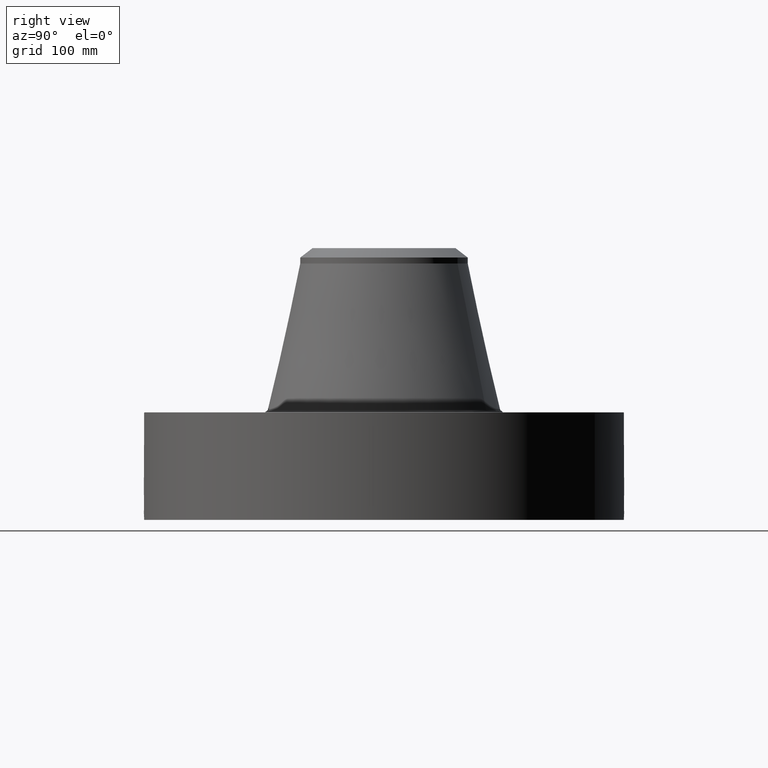
[diagram: clean part render]
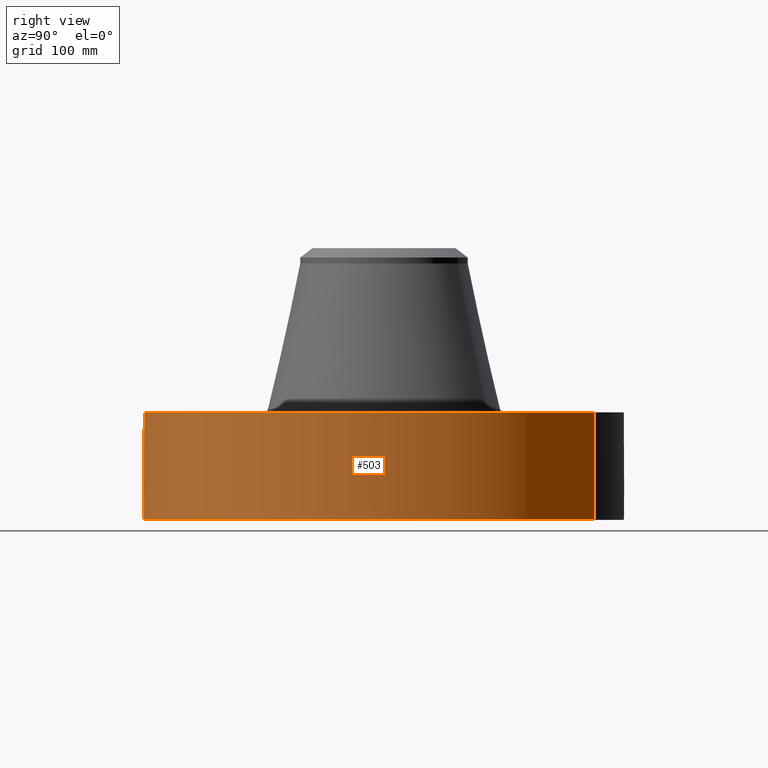
[diagram: same view with one face highlighted and labeled with its STEP entity id]
A machine part, right view. The second image highlights one B-rep face of the part: STEP entity #503.
In plain terms, the highlighted cylindrical surface (partial cylindrical patch) has radius 241.3 mm, axis along (0, 0, -1).
Its self-contained STEP definition (entity closure, byte-faithful):
#38=AXIS2_PLACEMENT_3D('Cylinder Axis2P3D',#35,#36,#37) ;
#169=AXIS2_PLACEMENT_3D('Circle Axis2P3D',#167,#168,$) ;
#407=AXIS2_PLACEMENT_3D('Circle Axis2P3D',#405,#406,$) ;
#35=CARTESIAN_POINT('Axis2P3D Location',(0.,0.,5.62500000002)) ;
#44=CARTESIAN_POINT('Vertex',(-4.55454261676,-8.33703433799,0.250000000001)) ;
#46=CARTESIAN_POINT('Vertex',(4.55454261676,8.33703433799,0.250000000001)) ;
#49=CARTESIAN_POINT('Line Origine',(-4.55454261676,-8.33703433799,2.37500000001)) ;
#53=CARTESIAN_POINT('Vertex',(-4.55454261676,-8.33703433799,4.50000000002)) ;
#60=CARTESIAN_POINT('Vertex',(4.55454261676,8.33703433799,4.50000000002)) ;
#63=CARTESIAN_POINT('Line Origine',(4.55454261676,8.33703433799,2.37500000001)) ;
#167=CARTESIAN_POINT('Axis2P3D Location',(0.,0.,0.250000000001)) ;
#405=CARTESIAN_POINT('Axis2P3D Location',(0.,0.,4.50000000002)) ;
#417=CARTESIAN_POINT('Control Point',(0.0575325675486,-9.49982578811,1.2894086259)) ;
#418=CARTESIAN_POINT('Control Point',(0.0387617029177,-9.49993946767,1.2925030616)) ;
#419=CARTESIAN_POINT('Control Point',(0.0197405343339,-9.49999853895,1.2940799501)) ;
#420=CARTESIAN_POINT('Control Point',(0.000716129650442,-9.49999997305,1.29411849914)) ;
#421=CARTESIAN_POINT('Vertex',(0.0575195611824,-9.49982611812,1.28941105279)) ;
#423=CARTESIAN_POINT('Vertex',(0.000716015010135,-9.49999997305,1.29411850959)) ;
#427=CARTESIAN_POINT('Control Point',(0.0575194650207,-9.49982586745,1.28941049641)) ;
#428=CARTESIAN_POINT('Control Point',(0.0971263632596,-9.49958605594,1.28465850568)) ;
#429=CARTESIAN_POINT('Control Point',(0.136002646622,-9.49909360353,1.27268550158)) ;
#430=CARTESIAN_POINT('Control Point',(0.171718061243,-9.49844792101,1.25435913128)) ;
#431=CARTESIAN_POINT('Vertex',(0.171718061243,-9.49844792101,1.25435913128)) ;
#435=CARTESIAN_POINT('Control Point',(0.0304002735868,-9.49995135904,0.531143633136)) ;
#436=CARTESIAN_POINT('Control Point',(0.086771623684,-9.49977096817,0.538305394629)) ;
#437=CARTESIAN_POINT('Control Point',(0.141553163732,-9.49917753609,0.555914995276)) ;
#438=CARTESIAN_POINT('Control Point',(0.192025537167,-9.49822518869,0.58347830249)) ;
#439=CARTESIAN_POINT('Control Point',(0.265325114584,-9.49641279305,0.642895462642)) ;
#440=CARTESIAN_POINT('Control Point',(0.317440529095,-9.49472459473,0.719316163414)) ;
#441=CARTESIAN_POINT('Control Point',(0.334530416928,-9.49412332696,0.751986426134)) ;
#442=CARTESIAN_POINT('Control Point',(0.36847674944,-9.4928757749,0.840222821261)) ;
#443=CARTESIAN_POINT('Control Point',(0.375526403581,-9.49256610225,0.934455389906)) ;
#444=CARTESIAN_POINT('Control Point',(0.36938599237,-9.49282227648,0.991999991558)) ;
#445=CARTESIAN_POINT('Control Point',(0.339906533012,-9.49399493767,1.09112721564)) ;
#446=CARTESIAN_POINT('Control Point',(0.2802853053,-9.49592560805,1.17427142741)) ;
#447=CARTESIAN_POINT('Control Point',(0.248256653886,-9.496854785,1.206906435)) ;
#448=CARTESIAN_POINT('Control Point',(0.211604005712,-9.49772684141,1.23389277069)) ;
#449=CARTESIAN_POINT('Control Point',(0.171718061243,-9.49844792101,1.25435913128)) ;
#450=CARTESIAN_POINT('Vertex',(0.0304002735868,-9.49995135904,0.531143633136)) ;
#454=CARTESIAN_POINT('Control Point',(0.0304002735868,-9.49995135904,0.531143633136)) ;
#455=CARTESIAN_POINT('Control Point',(0.0202611729211,-9.49998380462,0.53086805011)) ;
#456=CARTESIAN_POINT('Control Point',(0.0101166074945,-9.50000000294,0.530945220321)) ;
#457=CARTESIAN_POINT('Control Point',(-2.72878353046E-006,-9.50000000004,0.531374667805)) ;
#458=CARTESIAN_POINT('Vertex',(-2.7287835396E-006,-9.50000000004,0.531374667805)) ;
#462=CARTESIAN_POINT('Control Point',(-0.193159967405,-9.49803607214,0.586433233683)) ;
#463=CARTESIAN_POINT('Control Point',(-0.149212423465,-9.49892982598,0.561467059981)) ;
#464=CARTESIAN_POINT('Control Point',(-0.10115845212,-9.49963677984,0.543581165944)) ;
#465=CARTESIAN_POINT('Control Point',(-0.0508206519909,-9.49999998544,0.533531295689)) ;
#466=CARTESIAN_POINT('Control Point',(-2.7287835389E-006,-9.50000000004,0.531374667805)) ;
#467=CARTESIAN_POINT('Vertex',(-0.193159967405,-9.49803607214,0.586433233683)) ;
#471=CARTESIAN_POINT('Control Point',(-0.193159967405,-9.49803607214,0.586433233683)) ;
#472=CARTESIAN_POINT('Control Point',(-0.222119006546,-9.49744713702,0.602884582388)) ;
#473=CARTESIAN_POINT('Control Point',(-0.249411383296,-9.49678168254,0.622217405788)) ;
#474=CARTESIAN_POINT('Control Point',(-0.27463229271,-9.49607319595,0.644255702063)) ;
#475=CARTESIAN_POINT('Control Point',(-0.341385873217,-9.49399594884,0.716105581242)) ;
#476=CARTESIAN_POINT('Control Point',(-0.383874883489,-9.49227878282,0.80590194249)) ;
#477=CARTESIAN_POINT('Control Point',(-0.398800769094,-9.49161188678,0.870351359594)) ;
#478=CARTESIAN_POINT('Control Point',(-0.399486240267,-9.49162271031,0.984725351354)) ;
#479=CARTESIAN_POINT('Control Point',(-0.359254072444,-9.49323070792,1.08947767761)) ;
#480=CARTESIAN_POINT('Control Point',(-0.334931992898,-9.49415713767,1.13095983018)) ;
#481=CARTESIAN_POINT('Control Point',(-0.266159836537,-9.49647544685,1.21445681121)) ;
#482=CARTESIAN_POINT('Control Point',(-0.173480293447,-9.49864536547,1.26890997348)) ;
#483=CARTESIAN_POINT('Control Point',(-0.116677432548,-9.49955881178,1.28863410109)) ;
#484=CARTESIAN_POINT('Control Point',(-0.0579003419898,-9.50000015767,1.29699293844)) ;
#485=CARTESIAN_POINT('Control Point',(2.5857935542E-005,-9.5,1.29415298432)) ;
#486=CARTESIAN_POINT('Vertex',(2.5857935536E-005,-9.5,1.29415298432)) ;
#490=CARTESIAN_POINT('Control Point',(0.000716015000062,-9.49999997305,1.29411850958)) ;
#491=CARTESIAN_POINT('Control Point',(0.00037096058774,-9.49999999906,1.29413606495)) ;
#492=CARTESIAN_POINT('Control Point',(2.58579411811E-005,-9.5,1.29415298432)) ;
#36=DIRECTION('Axis2P3D Direction',(0.,0.,-0.0393700787402)) ;
#37=DIRECTION('Axis2P3D XDirection',(0.0188750212049,0.0345504945626,0.)) ;
#50=DIRECTION('Vector Direction',(0.,0.,-0.0393700787402)) ;
#64=DIRECTION('Vector Direction',(0.,0.,-0.0393700787402)) ;
#168=DIRECTION('Axis2P3D Direction',(0.,0.,-0.0393700787402)) ;
#406=DIRECTION('Axis2P3D Direction',(0.,0.,-0.0393700787402)) ;
#51=VECTOR('Line Direction',#50,0.0393700787402) ;
#65=VECTOR('Line Direction',#64,0.0393700787402) ;
#411=ORIENTED_EDGE('',*,*,#171,.F.) ;
#412=ORIENTED_EDGE('',*,*,#67,.T.) ;
#413=ORIENTED_EDGE('',*,*,#409,.T.) ;
#414=ORIENTED_EDGE('',*,*,#55,.F.) ;
#495=ORIENTED_EDGE('',*,*,#425,.F.) ;
#496=ORIENTED_EDGE('',*,*,#433,.T.) ;
#497=ORIENTED_EDGE('',*,*,#452,.F.) ;
#498=ORIENTED_EDGE('',*,*,#460,.T.) ;
#499=ORIENTED_EDGE('',*,*,#469,.F.) ;
#500=ORIENTED_EDGE('',*,*,#488,.T.) ;
#501=ORIENTED_EDGE('',*,*,#493,.F.) ;
#502=FACE_BOUND('',#494,.T.) ;
#503=ADVANCED_FACE('PartBody',(#415,#502),#39,.T.) ;
#416=B_SPLINE_CURVE_WITH_KNOTS('',3,(#417,#418,#419,#420),.UNSPECIFIED.,.F.,.U.,(4,4),(4.41073259354,6.52131742244),.UNSPECIFIED.) ;
#426=B_SPLINE_CURVE_WITH_KNOTS('',3,(#427,#428,#429,#430),.UNSPECIFIED.,.F.,.U.,(4,4),(0.,4.48220722212),.UNSPECIFIED.) ;
#434=B_SPLINE_CURVE_WITH_KNOTS('',5,(#435,#436,#437,#438,#439,#440,#441,#442,#443,#444,#445,#446,#447,#448,#449),.UNSPECIFIED.,.F.,.U.,(6,3,3,3,6),(0.,9.87570584292,16.4487421136,26.8457131585,35.1883792292),.UNSPECIFIED.) ;
#453=B_SPLINE_CURVE_WITH_KNOTS('',3,(#454,#455,#456,#457),.UNSPECIFIED.,.F.,.U.,(4,4),(0.,1.05758898706),.UNSPECIFIED.) ;
#461=B_SPLINE_CURVE_WITH_KNOTS('',4,(#462,#463,#464,#465,#466),.UNSPECIFIED.,.F.,.U.,(5,5),(0.,7.08142306885),.UNSPECIFIED.) ;
#470=B_SPLINE_CURVE_WITH_KNOTS('',5,(#471,#472,#473,#474,#475,#476,#477,#478,#479,#480,#481,#482,#483,#484,#485),.UNSPECIFIED.,.F.,.U.,(6,3,3,3,6),(0.,5.83284033728,17.1177406203,25.5997495881,36.4273577477),.UNSPECIFIED.) ;
#489=B_SPLINE_CURVE_WITH_KNOTS('',2,(#490,#491,#492),.UNSPECIFIED.,.F.,.U.,(3,3),(1.04159308309,1.06739582116),.UNSPECIFIED.) ;
#170=CIRCLE('generated circle',#169,9.50000000004) ;
#408=CIRCLE('generated circle',#407,9.50000000004) ;
#39=CYLINDRICAL_SURFACE('generated cylinder',#38,9.50000000004) ;
#55=EDGE_CURVE('',#45,#54,#52,.F.) ;
#67=EDGE_CURVE('',#47,#61,#66,.F.) ;
#171=EDGE_CURVE('',#47,#45,#170,.T.) ;
#409=EDGE_CURVE('',#61,#54,#408,.T.) ;
#425=EDGE_CURVE('',#422,#424,#416,.T.) ;
#433=EDGE_CURVE('',#422,#432,#426,.T.) ;
#452=EDGE_CURVE('',#451,#432,#434,.T.) ;
#460=EDGE_CURVE('',#451,#459,#453,.T.) ;
#469=EDGE_CURVE('',#468,#459,#461,.T.) ;
#488=EDGE_CURVE('',#468,#487,#470,.T.) ;
#493=EDGE_CURVE('',#424,#487,#489,.T.) ;
#410=EDGE_LOOP('',(#411,#412,#413,#414)) ;
#494=EDGE_LOOP('',(#495,#496,#497,#498,#499,#500,#501)) ;
#415=FACE_OUTER_BOUND('',#410,.T.) ;
#52=LINE('Line',#49,#51) ;
#66=LINE('Line',#63,#65) ;
#45=VERTEX_POINT('',#44) ;
#47=VERTEX_POINT('',#46) ;
#54=VERTEX_POINT('',#53) ;
#61=VERTEX_POINT('',#60) ;
#422=VERTEX_POINT('',#421) ;
#424=VERTEX_POINT('',#423) ;
#432=VERTEX_POINT('',#431) ;
#451=VERTEX_POINT('',#450) ;
#459=VERTEX_POINT('',#458) ;
#468=VERTEX_POINT('',#467) ;
#487=VERTEX_POINT('',#486) ;